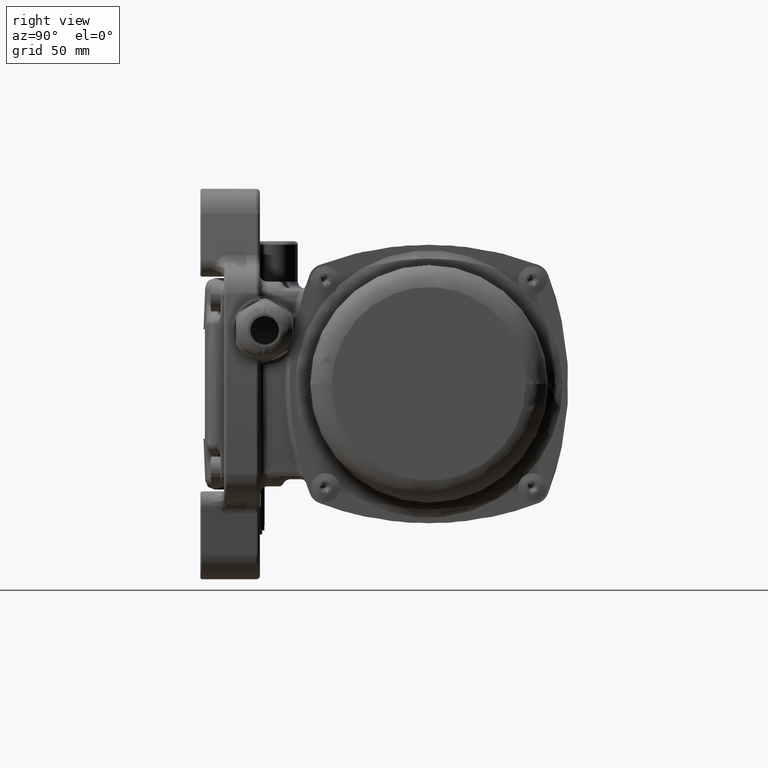
[diagram: clean part render]
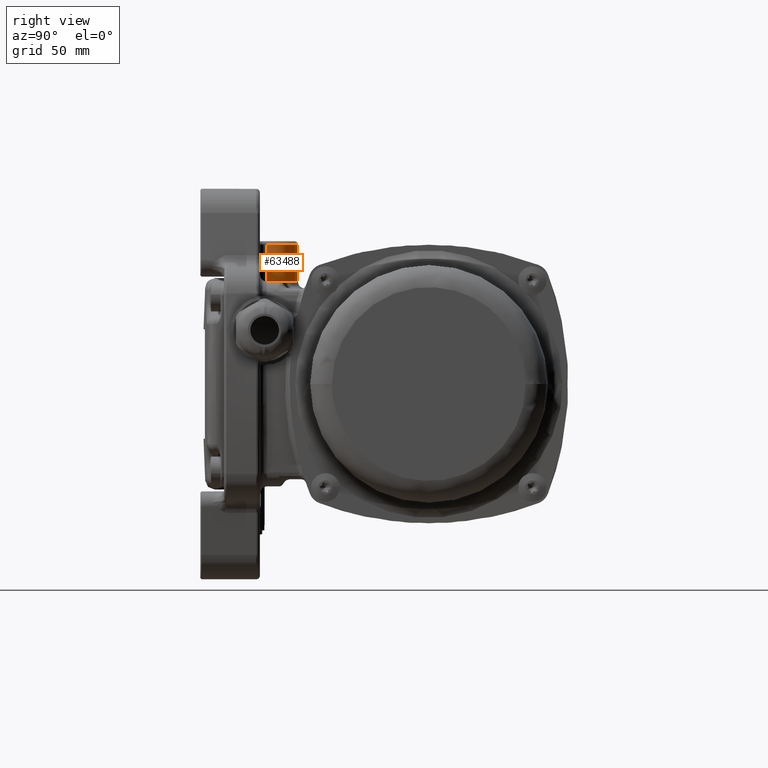
[diagram: same view with one face highlighted and labeled with its STEP entity id]
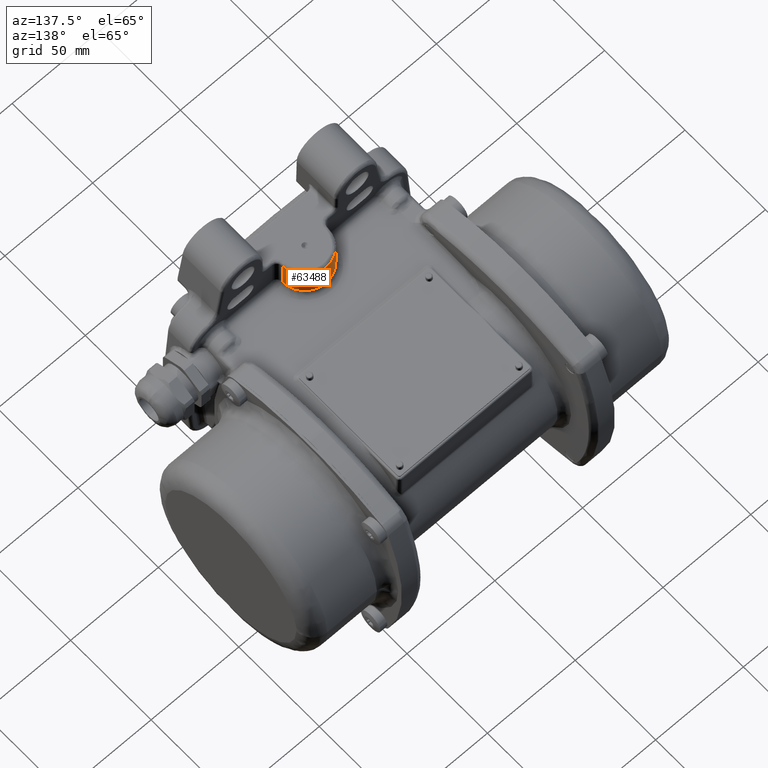
[diagram: same view with one face highlighted and labeled with its STEP entity id]
A machine part, right view. The second image highlights one B-rep face of the part: STEP entity #63488.
A second angle (auxiliary view) of the same face is appended — the face is thin or edge-on in the first view.
In plain terms, the highlighted cylindrical surface (edge-blend (fillet) strip) has radius 13 mm, axis along (0, 0, 1).
Its self-contained STEP definition (entity closure, byte-faithful):
#11408 = AXIS2_PLACEMENT_3D ( 'NONE', #168845, #68728, #12702 ) ;
#11644 = VECTOR ( 'NONE', #96528, 1000.000000000000000 ) ;
#12702 = DIRECTION ( 'NONE',  ( -1.000000000000000000, 0.0000000000000000000, 1.251002506714043800E-017 ) ) ;
#19074 = VERTEX_POINT ( 'NONE', #162224 ) ;
#19921 = VERTEX_POINT ( 'NONE', #112138 ) ;
#32380 = CYLINDRICAL_SURFACE ( 'NONE', #11408, 12.99999999999999800 ) ;
#33529 = AXIS2_PLACEMENT_3D ( 'NONE', #137293, #109232, #94914 ) ;
#37470 = VERTEX_POINT ( 'NONE', #110884 ) ;
#47671 = CARTESIAN_POINT ( 'NONE',  ( 13.00000000000000000, -68.00000000000000000, -0.4598566482878200200 ) ) ;
#49787 = CIRCLE ( 'NONE', #163545, 12.99999999999999800 ) ;
#63488 = ADVANCED_FACE ( 'NONE', ( #99160 ), #32380, .T. ) ;
#67929 = EDGE_CURVE ( 'NONE', #19921, #129605, #49787, .T. ) ;
#68728 = DIRECTION ( 'NONE',  ( 1.387778780781445100E-017, 1.387778780781445100E-017, 1.000000000000000000 ) ) ;
#80453 = EDGE_CURVE ( 'NONE', #37470, #19074, #82420, .T. ) ;
#80846 = ORIENTED_EDGE ( 'NONE', *, *, #80453, .T. ) ;
#82420 = CIRCLE ( 'NONE', #33529, 12.99999999999999800 ) ;
#89808 = ORIENTED_EDGE ( 'NONE', *, *, #103849, .T. ) ;
#91704 = DIRECTION ( 'NONE',  ( 1.387778780781445100E-017, 1.387778780781445100E-017, 1.000000000000000000 ) ) ;
#94914 = DIRECTION ( 'NONE',  ( -1.000000000000000000, 0.0000000000000000000, 0.0000000000000000000 ) ) ;
#96528 = DIRECTION ( 'NONE',  ( 1.387778780781445100E-017, 1.387778780781445100E-017, 1.000000000000000000 ) ) ;
#99160 = FACE_OUTER_BOUND ( 'NONE', #177455, .T. ) ;
#103849 = EDGE_CURVE ( 'NONE', #19074, #19921, #140566, .T. ) ;
#105280 = ORIENTED_EDGE ( 'NONE', *, *, #109091, .T. ) ;
#109091 = EDGE_CURVE ( 'NONE', #129605, #37470, #165204, .T. ) ;
#109232 = DIRECTION ( 'NONE',  ( -1.387778780781445100E-017, -1.387778780781445100E-017, -1.000000000000000000 ) ) ;
#110884 = CARTESIAN_POINT ( 'NONE',  ( -12.99999999999999600, -68.00000000000000000, 58.50000000000000000 ) ) ;
#112138 = CARTESIAN_POINT ( 'NONE',  ( 13.00000000000000000, -68.00000000000000000, 43.00000000000000700 ) ) ;
#118621 = DIRECTION ( 'NONE',  ( -1.387778780781445100E-017, -1.387778780781445100E-017, -1.000000000000000000 ) ) ;
#122697 = ORIENTED_EDGE ( 'NONE', *, *, #67929, .T. ) ;
#129605 = VERTEX_POINT ( 'NONE', #160862 ) ;
#132897 = DIRECTION ( 'NONE',  ( 1.000000000000000000, 0.0000000000000000000, 0.0000000000000000000 ) ) ;
#137293 = CARTESIAN_POINT ( 'NONE',  ( 2.699229728619916600E-015, -68.00000000000000000, 58.50000000000000000 ) ) ;
#140566 = LINE ( 'NONE', #47671, #173903 ) ;
#154423 = CARTESIAN_POINT ( 'NONE',  ( -12.99999999999999600, -68.00000000000000000, -0.4598566482878196400 ) ) ;
#160862 = CARTESIAN_POINT ( 'NONE',  ( -12.99999999999999600, -68.00000000000000000, 43.00000000000000700 ) ) ;
#162224 = CARTESIAN_POINT ( 'NONE',  ( 13.00000000000000000, -68.00000000000000000, 58.50000000000000000 ) ) ;
#163545 = AXIS2_PLACEMENT_3D ( 'NONE', #175119, #91704, #132897 ) ;
#165204 = LINE ( 'NONE', #154423, #11644 ) ;
#168845 = CARTESIAN_POINT ( 'NONE',  ( 1.880997348875820000E-015, -68.00000000000000000, -0.4598566482878198600 ) ) ;
#173903 = VECTOR ( 'NONE', #118621, 1000.000000000000000 ) ;
#175119 = CARTESIAN_POINT ( 'NONE',  ( 2.484124017598792500E-015, -68.00000000000000000, 43.00000000000000700 ) ) ;
#177455 = EDGE_LOOP ( 'NONE', ( #89808, #122697, #105280, #80846 ) ) ;